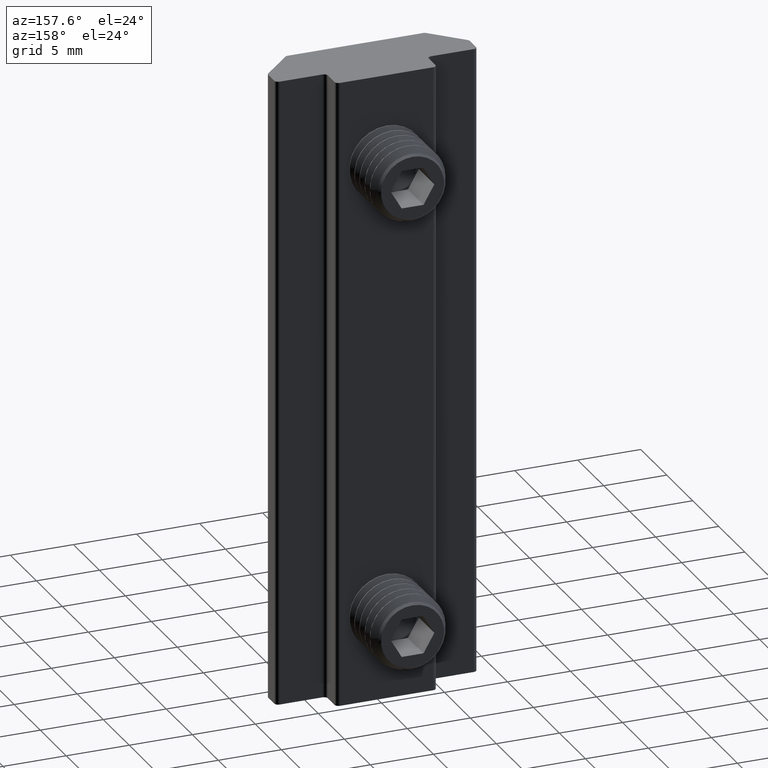
[diagram: clean part render]
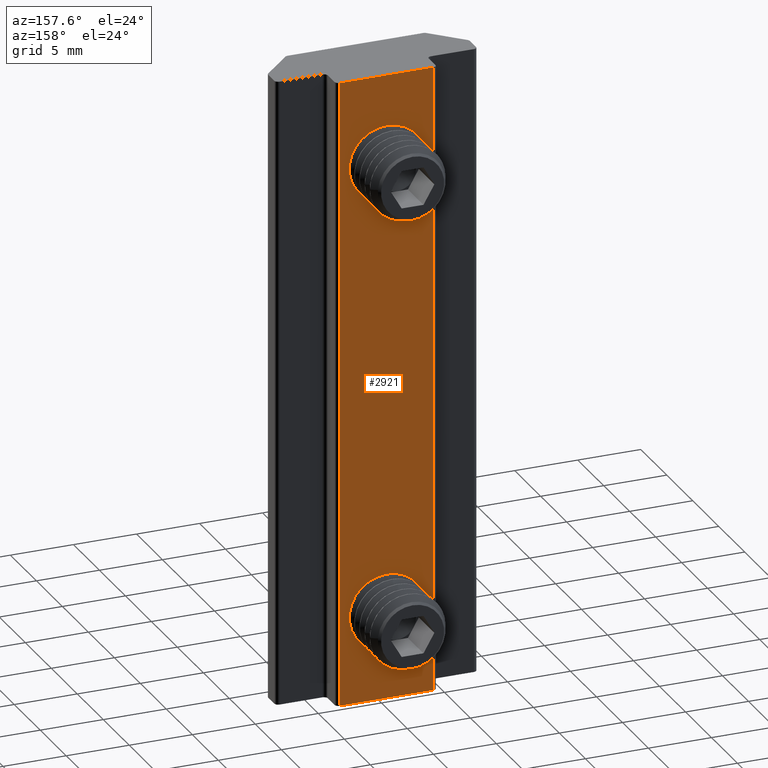
[diagram: same view with one face highlighted and labeled with its STEP entity id]
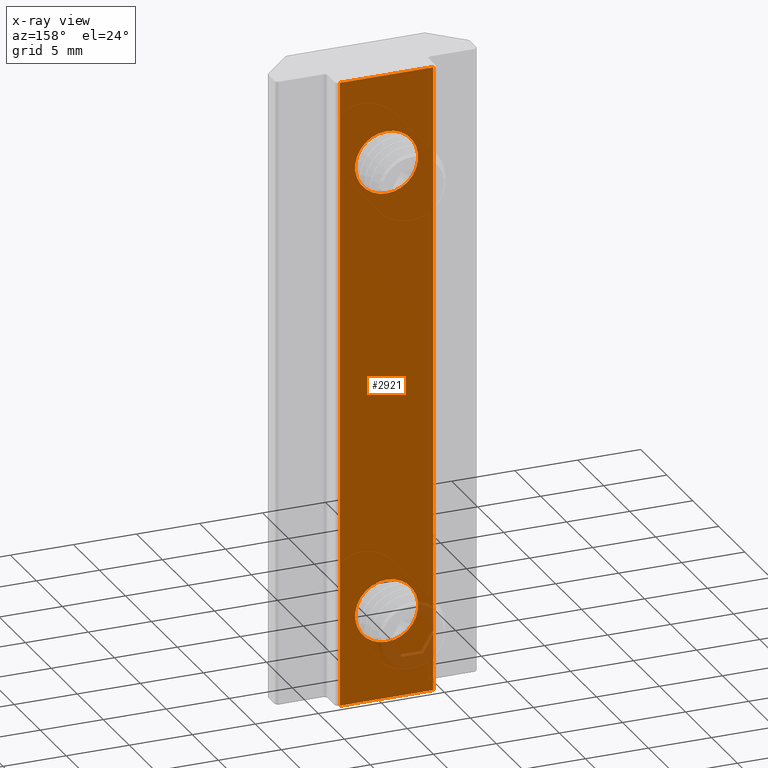
[diagram: x-ray of the same camera — body ghosted, the highlighted face saturated]
A machine part, auxiliary view. The second image highlights one B-rep face of the part: STEP entity #2921.
The next image is the same camera in x-ray: the body ghosted, the highlighted face saturated — about 2% of this face is hidden behind the body in this view.
In plain terms, the highlighted planar face has unit normal (0, -1, 0).
Its self-contained STEP definition (entity closure, byte-faithful):
#31 = VERTEX_POINT ( 'NONE', #346 ) ;
#175 = LINE ( 'NONE', #602, #2764 ) ;
#195 = CIRCLE ( 'NONE', #654, 2.499999999999998700 ) ;
#214 = CARTESIAN_POINT ( 'NONE',  ( -7.000126243864592800E-015, 5.999999999999999100, -18.00000000000000700 ) ) ;
#235 = CARTESIAN_POINT ( 'NONE',  ( 3.700000000000003700, 5.999999999999999100, -25.00000000000000000 ) ) ;
#301 = EDGE_CURVE ( 'NONE', #390, #2264, #1718, .T. ) ;
#312 = DIRECTION ( 'NONE',  ( 0.0000000000000000000, -1.000000000000000000, 0.0000000000000000000 ) ) ;
#346 = CARTESIAN_POINT ( 'NONE',  ( -7.000126243864592800E-015, 5.999999999999999100, -15.50000000000000700 ) ) ;
#369 = FACE_OUTER_BOUND ( 'NONE', #2511, .T. ) ;
#390 = VERTEX_POINT ( 'NONE', #2410 ) ;
#441 = DIRECTION ( 'NONE',  ( 1.156482317317871100E-015, -1.000000000000000000, 0.0000000000000000000 ) ) ;
#478 = AXIS2_PLACEMENT_3D ( 'NONE', #1671, #312, #2683 ) ;
#491 = PLANE ( 'NONE',  #2934 ) ;
#601 = CARTESIAN_POINT ( 'NONE',  ( -7.000126243864592800E-015, 5.999999999999999100, 18.00000000000000700 ) ) ;
#602 = CARTESIAN_POINT ( 'NONE',  ( -3.699999999999998400, 5.999999999999994700, 25.00000000000000000 ) ) ;
#646 = CIRCLE ( 'NONE', #4182, 2.499999999999998700 ) ;
#654 = AXIS2_PLACEMENT_3D ( 'NONE', #214, #2909, #3622 ) ;
#685 = VERTEX_POINT ( 'NONE', #2491 ) ;
#933 = ORIENTED_EDGE ( 'NONE', *, *, #1522, .F. ) ;
#947 = DIRECTION ( 'NONE',  ( -0.0000000000000000000, 0.0000000000000000000, 1.000000000000000000 ) ) ;
#984 = VERTEX_POINT ( 'NONE', #1579 ) ;
#997 = DIRECTION ( 'NONE',  ( 1.000000000000000000, -0.0000000000000000000, 0.0000000000000000000 ) ) ;
#1407 = EDGE_CURVE ( 'NONE', #984, #31, #3797, .T. ) ;
#1439 = FACE_BOUND ( 'NONE', #3085, .T. ) ;
#1454 = LINE ( 'NONE', #3366, #2338 ) ;
#1455 = CARTESIAN_POINT ( 'NONE',  ( -3.699999999999998400, 5.999999999999996400, 25.00000000000000000 ) ) ;
#1522 = EDGE_CURVE ( 'NONE', #2264, #685, #3956, .T. ) ;
#1555 = EDGE_CURVE ( 'NONE', #3387, #390, #175, .T. ) ;
#1558 = VECTOR ( 'NONE', #947, 1000.000000000000000 ) ;
#1573 = DIRECTION ( 'NONE',  ( 0.0000000000000000000, 0.0000000000000000000, 1.000000000000000000 ) ) ;
#1579 = CARTESIAN_POINT ( 'NONE',  ( -6.693964544077754100E-015, 5.999999999999999100, -20.50000000000000400 ) ) ;
#1671 = CARTESIAN_POINT ( 'NONE',  ( -7.000126243864592800E-015, 5.999999999999999100, 18.00000000000000700 ) ) ;
#1674 = EDGE_CURVE ( 'NONE', #3387, #685, #1454, .T. ) ;
#1718 = LINE ( 'NONE', #4222, #2347 ) ;
#1852 = DIRECTION ( 'NONE',  ( 1.000000000000000000, 1.156482317317871100E-015, 0.0000000000000000000 ) ) ;
#1855 = CARTESIAN_POINT ( 'NONE',  ( -7.000126243864592800E-015, 5.999999999999999100, -18.00000000000000700 ) ) ;
#2096 = ORIENTED_EDGE ( 'NONE', *, *, #1555, .F. ) ;
#2121 = EDGE_CURVE ( 'NONE', #3719, #3709, #2391, .T. ) ;
#2179 = AXIS2_PLACEMENT_3D ( 'NONE', #1855, #3221, #1573 ) ;
#2212 = ORIENTED_EDGE ( 'NONE', *, *, #4298, .T. ) ;
#2244 = CARTESIAN_POINT ( 'NONE',  ( -7.000126243864592800E-015, 5.999999999999999100, 20.50000000000000400 ) ) ;
#2264 = VERTEX_POINT ( 'NONE', #235 ) ;
#2305 = EDGE_CURVE ( 'NONE', #3709, #3719, #646, .T. ) ;
#2338 = VECTOR ( 'NONE', #997, 1000.000000000000000 ) ;
#2347 = VECTOR ( 'NONE', #3849, 1000.000000000000000 ) ;
#2391 = CIRCLE ( 'NONE', #478, 2.499999999999998700 ) ;
#2410 = CARTESIAN_POINT ( 'NONE',  ( -3.699999999999998400, 5.999999999999994700, -25.00000000000000000 ) ) ;
#2491 = CARTESIAN_POINT ( 'NONE',  ( 3.700000000000003700, 6.000000000000000900, 25.00000000000000000 ) ) ;
#2511 = EDGE_LOOP ( 'NONE', ( #4038, #933, #4353, #2096 ) ) ;
#2660 = DIRECTION ( 'NONE',  ( 0.0000000000000000000, 0.0000000000000000000, 1.000000000000000000 ) ) ;
#2683 = DIRECTION ( 'NONE',  ( 0.0000000000000000000, 0.0000000000000000000, 1.000000000000000000 ) ) ;
#2764 = VECTOR ( 'NONE', #2967, 1000.000000000000000 ) ;
#2806 = ORIENTED_EDGE ( 'NONE', *, *, #1407, .T. ) ;
#2909 = DIRECTION ( 'NONE',  ( 0.0000000000000000000, -1.000000000000000000, 0.0000000000000000000 ) ) ;
#2921 = ADVANCED_FACE ( 'NONE', ( #1439, #3830, #369 ), #491, .F. ) ;
#2934 = AXIS2_PLACEMENT_3D ( 'NONE', #3192, #441, #1852 ) ;
#2950 = EDGE_LOOP ( 'NONE', ( #3532, #4145 ) ) ;
#2967 = DIRECTION ( 'NONE',  ( 0.0000000000000000000, -0.0000000000000000000, -1.000000000000000000 ) ) ;
#2991 = DIRECTION ( 'NONE',  ( 0.0000000000000000000, -1.000000000000000000, 0.0000000000000000000 ) ) ;
#3085 = EDGE_LOOP ( 'NONE', ( #2212, #2806 ) ) ;
#3192 = CARTESIAN_POINT ( 'NONE',  ( -3.999999999999998200, 5.999999999999994700, 25.00000000000000000 ) ) ;
#3221 = DIRECTION ( 'NONE',  ( 0.0000000000000000000, -1.000000000000000000, 0.0000000000000000000 ) ) ;
#3366 = CARTESIAN_POINT ( 'NONE',  ( -7.999999999999996400, 5.999999999999998200, 25.00000000000000000 ) ) ;
#3387 = VERTEX_POINT ( 'NONE', #1455 ) ;
#3532 = ORIENTED_EDGE ( 'NONE', *, *, #2305, .T. ) ;
#3592 = CARTESIAN_POINT ( 'NONE',  ( -6.693964544077754100E-015, 5.999999999999999100, 15.50000000000000700 ) ) ;
#3622 = DIRECTION ( 'NONE',  ( 0.0000000000000000000, 0.0000000000000000000, 1.000000000000000000 ) ) ;
#3681 = CARTESIAN_POINT ( 'NONE',  ( 3.700000000000003700, 6.000000000000003600, 25.00000000000000000 ) ) ;
#3709 = VERTEX_POINT ( 'NONE', #2244 ) ;
#3719 = VERTEX_POINT ( 'NONE', #3592 ) ;
#3797 = CIRCLE ( 'NONE', #2179, 2.499999999999998700 ) ;
#3830 = FACE_BOUND ( 'NONE', #2950, .T. ) ;
#3849 = DIRECTION ( 'NONE',  ( 1.000000000000000000, -0.0000000000000000000, 0.0000000000000000000 ) ) ;
#3956 = LINE ( 'NONE', #3681, #1558 ) ;
#4038 = ORIENTED_EDGE ( 'NONE', *, *, #1674, .T. ) ;
#4145 = ORIENTED_EDGE ( 'NONE', *, *, #2121, .T. ) ;
#4182 = AXIS2_PLACEMENT_3D ( 'NONE', #601, #2991, #2660 ) ;
#4222 = CARTESIAN_POINT ( 'NONE',  ( -7.999999999999996400, 5.999999999999994700, -25.00000000000000000 ) ) ;
#4298 = EDGE_CURVE ( 'NONE', #31, #984, #195, .T. ) ;
#4353 = ORIENTED_EDGE ( 'NONE', *, *, #301, .F. ) ;